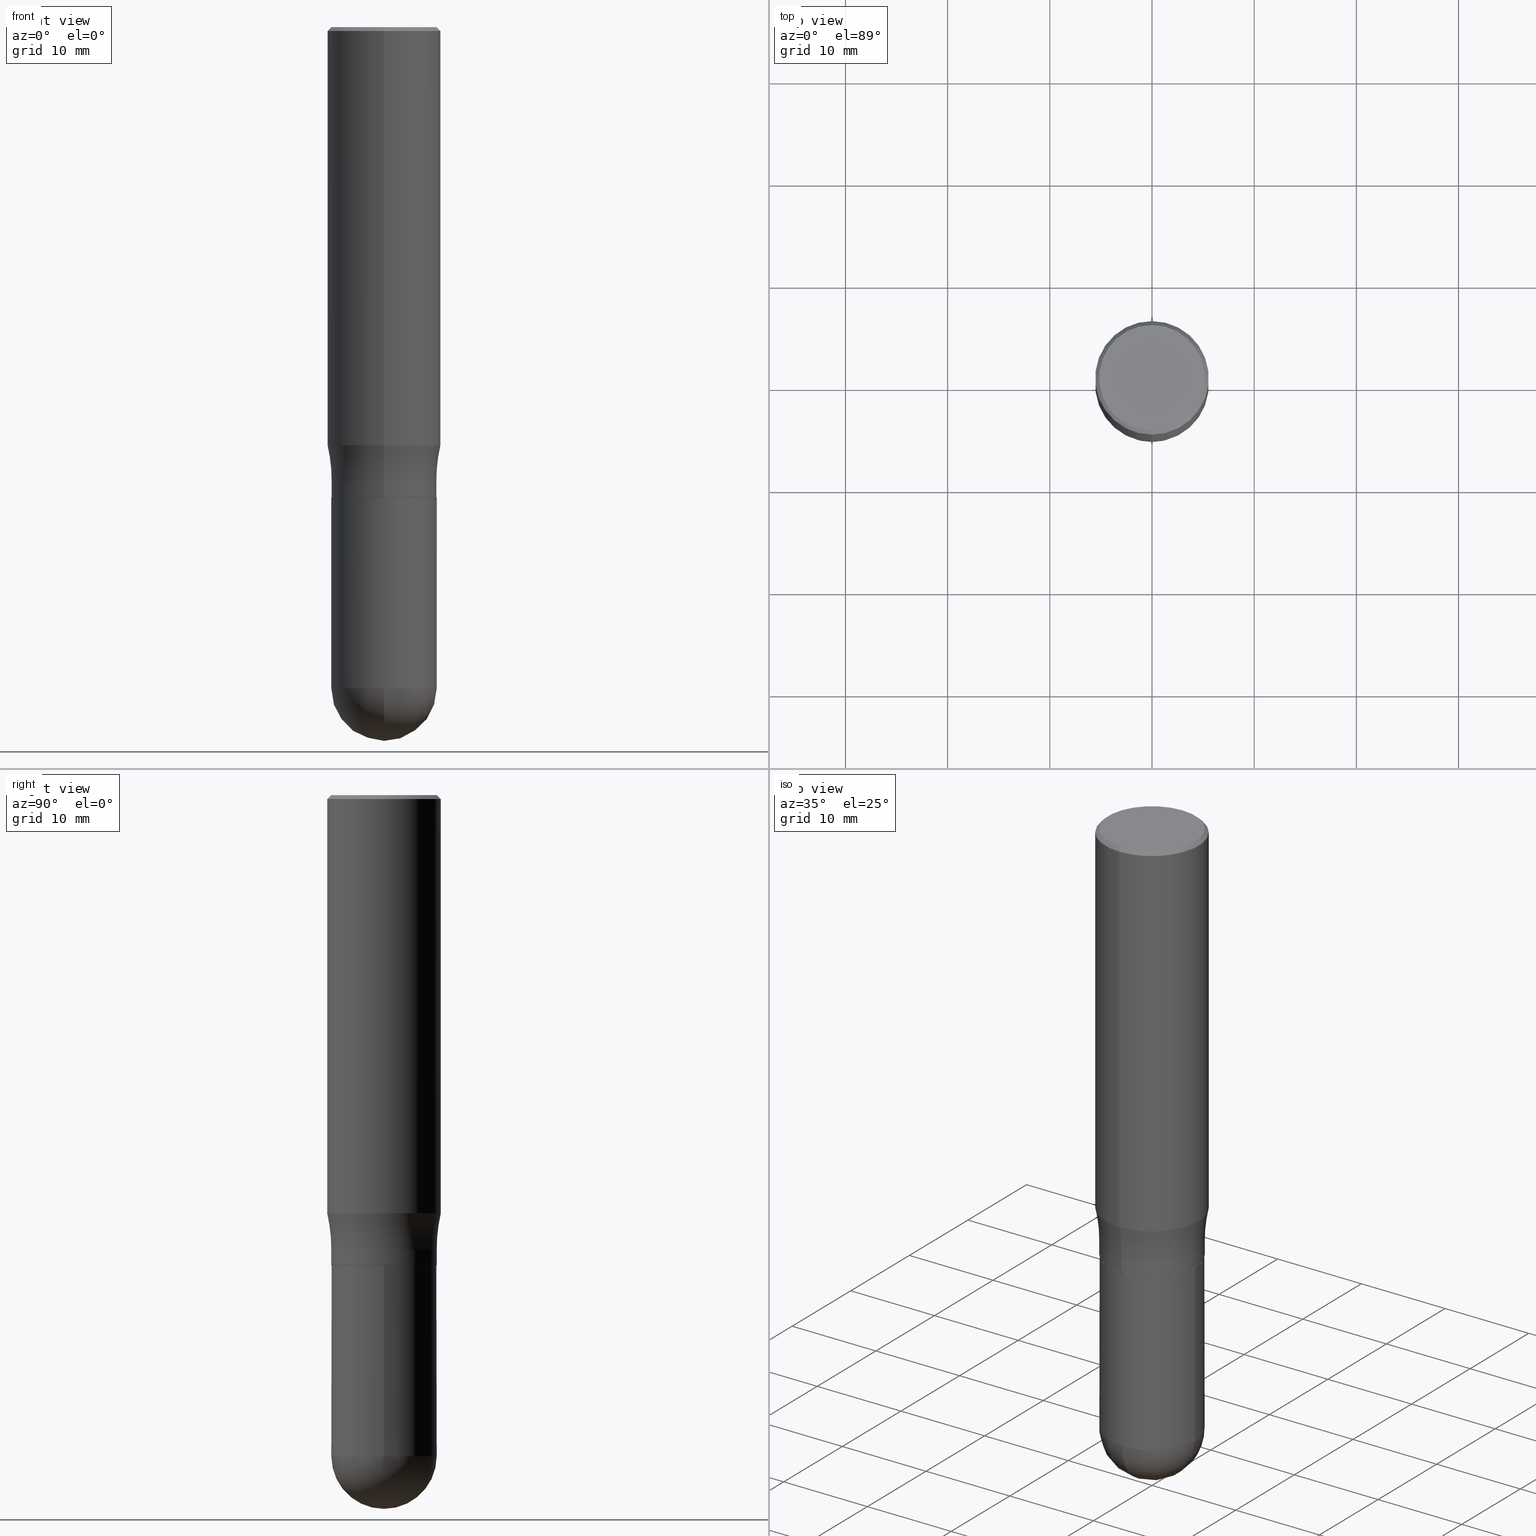
[diagram: canonical four-view strip — front | top / right | iso, engineering-drawing reading convention]
A machine part, canonical four-view strip (front | top / right | iso — engineering-drawing reading convention). The complete STEP part file that produces these views, byte-faithful:
ISO-10303-21;
HEADER;
FILE_DESCRIPTION (( 'STEP AP203' ),
    '1' );
FILE_NAME ('36540.STEP',
    '2024-03-01T12:58:54',
    ( '' ),
    ( '' ),
    'SwSTEP 2.0',
    'SolidWorks 2023',
    '' );
FILE_SCHEMA (( 'CONFIG_CONTROL_DESIGN' ));
ENDSEC;

DATA;
#1 = ORIENTED_EDGE ( 'NONE', *, *, #494, .T. ) ;
#2 = DIRECTION ( 'NONE',  ( -6.982962677686266711E-15, -1.000000000000000000, 3.492555104760498862E-15 ) ) ;
#3 = AXIS2_PLACEMENT_3D ( 'NONE', #290, #445, #2 ) ;
#4 = VERTEX_POINT ( 'NONE', #295 ) ;
#5 = CARTESIAN_POINT ( 'NONE',  ( 0.2031000000000000583, -7.744803905821861355E-15, -1.812000000000000055 ) ) ;
#6 = VERTEX_POINT ( 'NONE', #283 ) ;
#7 = APPLICATION_PROTOCOL_DEFINITION ( 'international standard', 'config_control_design', 1994, #176 ) ;
#8 = DIRECTION ( 'NONE',  ( -2.444718999452591209E-29, 3.492555104760499256E-15, 1.000000000000000000 ) ) ;
#9 = ORIENTED_EDGE ( 'NONE', *, *, #355, .F. ) ;
#10 = PERSON_AND_ORGANIZATION ( #73, #449 ) ;
#11 = CARTESIAN_POINT ( 'NONE',  ( 0.000000000000000000, 0.000000000000000000, 0.000000000000000000 ) ) ;
#12 = DIRECTION ( 'NONE',  ( -6.982962677686265133E-15, -1.000000000000000000, 3.492862791899308071E-15 ) ) ;
#13 = AXIS2_PLACEMENT_3D ( 'NONE', #95, #20, #57 ) ;
#14 = DIRECTION ( 'NONE',  ( -2.444718999452591209E-29, 3.492555104760499256E-15, 1.000000000000000000 ) ) ;
#15 = DIRECTION ( 'NONE',  ( 1.000000000000000000, -6.982962677686265922E-15, 4.876176775795935232E-29 ) ) ;
#16 = CARTESIAN_POINT ( 'NONE',  ( 6.228364502472924746E-29, -8.892453821899607499E-15, -2.546899999999999942 ) ) ;
#17 = EDGE_CURVE ( 'NONE', #349, #6, #387, .T. ) ;
#18 = VECTOR ( 'NONE', #131, 39.37007874015748143 ) ;
#19 = SECURITY_CLASSIFICATION ( '', '', #48 ) ;
#20 = DIRECTION ( 'NONE',  ( -2.445468806185136597E-29, 3.491481338843145583E-15, 1.000000000000000000 ) ) ;
#21 = AXIS2_PLACEMENT_3D ( 'NONE', #362, #83, #364 ) ;
#22 = DIRECTION ( 'NONE',  ( -2.444718999452591209E-29, 3.492555104760499256E-15, 1.000000000000000000 ) ) ;
#23 = ORIENTED_EDGE ( 'NONE', *, *, #174, .F. ) ;
#24 = APPROVAL ( #463, 'UNSPECIFIED' ) ;
#25 = VERTEX_POINT ( 'NONE', #168 ) ;
#26 =( LENGTH_UNIT ( ) NAMED_UNIT ( * ) SI_UNIT ( $, .METRE. ) );
#27 = DIRECTION ( 'NONE',  ( -2.444718999452591209E-29, 3.492555104760499256E-15, 1.000000000000000000 ) ) ;
#28 = ORIENTED_EDGE ( 'NONE', *, *, #91, .T. ) ;
#29 = CARTESIAN_POINT ( 'NONE',  ( 4.429830827008095492E-29, -6.328509849826025393E-15, -1.812000000000000277 ) ) ;
#30 = DIRECTION ( 'NONE',  ( -6.982962677686266711E-15, -1.000000000000000000, 4.045184590815788627E-15 ) ) ;
#31 = APPLICATION_PROTOCOL_DEFINITION ( 'international standard', 'config_control_design', 1994, #411 ) ;
#32 = AXIS2_PLACEMENT_3D ( 'NONE', #56, #374, #377 ) ;
#33 = DIRECTION ( 'NONE',  ( -2.444718999452591209E-29, 3.492555104760499256E-15, 1.000000000000000000 ) ) ;
#34 = VERTEX_POINT ( 'NONE', #338 ) ;
#35 = EDGE_CURVE ( 'NONE', #187, #408, #378, .T. ) ;
#36 = CLOSED_SHELL ( 'NONE', ( #221, #42, #398, #218, #304, #343, #94, #268, #262, #454, #277, #80 ) ) ;
#37 = ORIENTED_EDGE ( 'NONE', *, *, #174, .T. ) ;
#38 = DIRECTION ( 'NONE',  ( 0.000000000000000000, 0.000000000000000000, 1.000000000000000000 ) ) ;
#39 = CARTESIAN_POINT ( 'NONE',  ( -0.2031000000000000583, -6.166396707612929754E-15, -1.812000000000000055 ) ) ;
#40 = CYLINDRICAL_SURFACE ( 'NONE', #21, 0.2187499999999999445 ) ;
#41 = CYLINDRICAL_SURFACE ( 'NONE', #455, 0.2031000000000002248 ) ;
#42 = ADVANCED_FACE ( 'NONE', ( #332 ), #274, .T. ) ;
#43 = AXIS2_PLACEMENT_3D ( 'NONE', #135, #98, #260 ) ;
#44 = ORIENTED_EDGE ( 'NONE', *, *, #361, .T. ) ;
#45 = VERTEX_POINT ( 'NONE', #129 ) ;
#46 = AXIS2_PLACEMENT_3D ( 'NONE', #484, #251, #373 ) ;
#47 = CARTESIAN_POINT ( 'NONE',  ( 6.232375232369175849E-29, -8.886710228411606040E-15, -2.546899999999999942 ) ) ;
#48 = SECURITY_CLASSIFICATION_LEVEL ( 'unclassified' ) ;
#49 = DIRECTION ( 'NONE',  ( -2.445468806185136597E-29, 3.491481338843145583E-15, 1.000000000000000000 ) ) ;
#50 = VERTEX_POINT ( 'NONE', #93 ) ;
#51 = ADVANCED_FACE ( 'NONE', ( #288 ), #415, .T. ) ;
#52 = DIRECTION ( 'NONE',  ( -6.982962677686266711E-15, -1.000000000000000000, 3.492555104760498862E-15 ) ) ;
#53 = DIRECTION ( 'NONE',  ( -2.444718999452591209E-29, 3.492555104760499256E-15, 1.000000000000000000 ) ) ;
#54 = CONICAL_SURFACE ( 'NONE', #154, 0.2026000000000000578, 0.7853981633974824739 ) ;
#55 = DIRECTION ( 'NONE',  ( -2.444718999452591209E-29, 3.492555104760499256E-15, 1.000000000000000000 ) ) ;
#56 = CARTESIAN_POINT ( 'NONE',  ( 3.938472406756047000E-29, -5.626549273047013922E-15, -1.611012311696325527 ) ) ;
#57 = DIRECTION ( 'NONE',  ( 1.000000000000000000, -6.982962677686262766E-15, 0.000000000000000000 ) ) ;
#58 = CIRCLE ( 'NONE', #347, 0.6250000000000000000 ) ;
#59 = APPROVAL_ROLE ( '' ) ;
#60 = CC_DESIGN_SECURITY_CLASSIFICATION ( #19, ( #184 ) ) ;
#61 = DIRECTION ( 'NONE',  ( 2.444718999452590928E-29, -3.492555104760499256E-15, -1.000000000000000000 ) ) ;
#62 = ORIENTED_EDGE ( 'NONE', *, *, #317, .F. ) ;
#63 = APPROVAL_DATE_TIME ( #379, #24 ) ;
#64 = VERTEX_POINT ( 'NONE', #172 ) ;
#65 = CARTESIAN_POINT ( 'NONE',  ( -1.418239719838081959E-15, -0.2031000000000002248, 7.093379417768580917E-16 ) ) ;
#66 = ORIENTED_EDGE ( 'NONE', *, *, #128, .F. ) ;
#67 = LINE ( 'NONE', #232, #234 ) ;
#68 = ORIENTED_EDGE ( 'NONE', *, *, #459, .T. ) ;
#69 = EDGE_CURVE ( 'NONE', #34, #6, #439, .T. ) ;
#70 = ORIENTED_EDGE ( 'NONE', *, *, #371, .T. ) ;
#71 = APPROVAL_ROLE ( '' ) ;
#72 = CIRCLE ( 'NONE', #297, 0.2031000000000000583 ) ;
#73 = PERSON ( 'UNSPECIFIED', 'UNSPECIFIED', 'UNSPECIFIED', ('UNSPECIFIED'), ('UNSPECIFIED'), ('UNSPECIFIED') ) ;
#74 = LINE ( 'NONE', #238, #96 ) ;
#75 = LOCAL_TIME ( 7, 58, 54.00000000000000000, #222 ) ;
#76 = ORIENTED_EDGE ( 'NONE', *, *, #312, .F. ) ;
#77 = CARTESIAN_POINT ( 'NONE',  ( 4.429830827008095492E-29, -6.328509849826025393E-15, -1.812000000000000277 ) ) ;
#78 = DESIGN_CONTEXT ( 'detailed design', #176, 'design' ) ;
#79 = ORIENTED_EDGE ( 'NONE', *, *, #144, .F. ) ;
#80 = ADVANCED_FACE ( 'NONE', ( #203 ), #40, .T. ) ;
#81 = DATE_AND_TIME ( #441, #219 ) ;
#82 = CARTESIAN_POINT ( 'NONE',  ( 4.279570410823991286E-29, -6.110092342975507826E-15, -1.750000000000001110 ) ) ;
#83 = DIRECTION ( 'NONE',  ( -2.444718999452591209E-29, 3.492555104760499256E-15, 1.000000000000000000 ) ) ;
#84 = VERTEX_POINT ( 'NONE', #159 ) ;
#85 = COORDINATED_UNIVERSAL_TIME_OFFSET ( 5, 0, .BEHIND. ) ;
#86 = CARTESIAN_POINT ( 'NONE',  ( -5.782591393391955660E-15, -0.8281000000000063865, -1.749999999999998002 ) ) ;
#87 = ORIENTED_EDGE ( 'NONE', *, *, #97, .T. ) ;
#88 = ORIENTED_EDGE ( 'NONE', *, *, #312, .T. ) ;
#89 = PERSON_AND_ORGANIZATION ( #73, #449 ) ;
#90 = FACE_OUTER_BOUND ( 'NONE', #468, .T. ) ;
#91 = EDGE_CURVE ( 'NONE', #50, #508, #469, .T. ) ;
#92 = DIRECTION ( 'NONE',  ( -6.982962677686265133E-15, -1.000000000000000000, 3.492555104760498862E-15 ) ) ;
#93 = CARTESIAN_POINT ( 'NONE',  ( -0.2031000000000000583, -6.166396707612929754E-15, -2.546899999999999942 ) ) ;
#94 = ADVANCED_FACE ( 'NONE', ( #432 ), #116, .T. ) ;
#95 = CARTESIAN_POINT ( 'NONE',  ( 6.228364502472924746E-29, -8.892453821899607499E-15, -2.546899999999999942 ) ) ;
#96 = VECTOR ( 'NONE', #186, 39.37007874015748143 ) ;
#97 = EDGE_CURVE ( 'NONE', #350, #349, #67, .T. ) ;
#98 = DIRECTION ( 'NONE',  ( -2.444718999452591209E-29, 3.492555104760499256E-15, 1.000000000000000000 ) ) ;
#99 = FACE_OUTER_BOUND ( 'NONE', #273, .T. ) ;
#100 = AXIS2_PLACEMENT_3D ( 'NONE', #346, #500, #472 ) ;
#101 = CC_DESIGN_APPROVAL ( #24, ( #19 ) ) ;
#102 = LINE ( 'NONE', #209, #167 ) ;
#103 = CARTESIAN_POINT ( 'NONE',  ( 0.000000000000000000, 0.000000000000000000, 0.000000000000000000 ) ) ;
#104 = ORIENTED_EDGE ( 'NONE', *, *, #494, .F. ) ;
#105 = DATE_AND_TIME ( #237, #303 ) ;
#106 = AXIS2_PLACEMENT_3D ( 'NONE', #393, #270, #30 ) ;
#107 = DIRECTION ( 'NONE',  ( -2.444718999452591209E-29, 3.492555104760499256E-15, 1.000000000000000000 ) ) ;
#108 = ORIENTED_EDGE ( 'NONE', *, *, #368, .F. ) ;
#109 = AXIS2_PLACEMENT_3D ( 'NONE', #47, #155, #319 ) ;
#110 = CARTESIAN_POINT ( 'NONE',  ( 0.000000000000000000, 0.000000000000000000, 0.000000000000000000 ) ) ;
#111 = ORIENTED_EDGE ( 'NONE', *, *, #211, .F. ) ;
#112 = EDGE_CURVE ( 'NONE', #408, #349, #193, .T. ) ;
#113 = CARTESIAN_POINT ( 'NONE',  ( 4.428608467508369173E-29, -6.326763572273644281E-15, -1.811500000000000110 ) ) ;
#114 = ORIENTED_EDGE ( 'NONE', *, *, #509, .F. ) ;
#115 = DIRECTION ( 'NONE',  ( -4.937700262164715281E-15, -0.7071067811865691111, 0.7071067811865257013 ) ) ;
#116 = CYLINDRICAL_SURFACE ( 'NONE', #381, 0.2031000000000002248 ) ;
#117 = CARTESIAN_POINT ( 'NONE',  ( 0.000000000000000000, 0.000000000000000000, 0.000000000000000000 ) ) ;
#118 = DIRECTION ( 'NONE',  ( -2.444718999452591209E-29, 3.492555104760499256E-15, 1.000000000000000000 ) ) ;
#119 = EDGE_CURVE ( 'NONE', #84, #4, #181, .T. ) ;
#120 = ORIENTED_EDGE ( 'NONE', *, *, #256, .T. ) ;
#121 = DIRECTION ( 'NONE',  ( -1.000000000000000000, 7.105427357601001070E-15, -4.926315508542082329E-29 ) ) ;
#122 = PERSON_AND_ORGANIZATION ( #73, #449 ) ;
#123 = DIRECTION ( 'NONE',  ( -2.444718999452590928E-29, 3.492555104760499256E-15, 1.000000000000000000 ) ) ;
#124 = ORIENTED_EDGE ( 'NONE', *, *, #136, .T. ) ;
#125 = DIRECTION ( 'NONE',  ( 1.000000000000000000, -6.982962677686267499E-15, 0.000000000000000000 ) ) ;
#126 = VECTOR ( 'NONE', #115, 39.37007874015748854 ) ;
#127 = DIRECTION ( 'NONE',  ( -6.982962677686266711E-15, -1.000000000000000000, 4.045184590815788627E-15 ) ) ;
#128 = EDGE_CURVE ( 'NONE', #429, #64, #265, .T. ) ;
#129 = CARTESIAN_POINT ( 'NONE',  ( 6.737734160571993830E-29, -9.583393800085308814E-15, -2.750000000000000444 ) ) ;
#130 = TOROIDAL_SURFACE ( 'NONE', #281, 0.8281000000000002803, 0.6250000000000000000 ) ;
#131 = DIRECTION ( 'NONE',  ( -2.445468806185136877E-29, 3.491481338843145188E-15, 1.000000000000000000 ) ) ;
#132 = AXIS2_PLACEMENT_3D ( 'NONE', #487, #53, #210 ) ;
#133 = ORIENTED_EDGE ( 'NONE', *, *, #368, .T. ) ;
#134 = DIRECTION ( 'NONE',  ( -6.982962677686265133E-15, -1.000000000000000000, 3.492555104760498862E-15 ) ) ;
#135 = CARTESIAN_POINT ( 'NONE',  ( 4.428608467508369173E-29, -6.326763572273644281E-15, -1.811500000000000110 ) ) ;
#136 = EDGE_CURVE ( 'NONE', #504, #64, #496, .T. ) ;
#137 = AXIS2_PLACEMENT_3D ( 'NONE', #29, #231, #386 ) ;
#138 = AXIS2_PLACEMENT_3D ( 'NONE', #110, #38, #157 ) ;
#139 = FACE_OUTER_BOUND ( 'NONE', #156, .T. ) ;
#140 = CC_DESIGN_PERSON_AND_ORGANIZATION_ASSIGNMENT ( #252, #409, ( #184 ) ) ;
#141 = EDGE_LOOP ( 'NONE', ( #320, #28, #382, #44, #108 ) ) ;
#142 = ORIENTED_EDGE ( 'NONE', *, *, #164, .F. ) ;
#143 = ORIENTED_EDGE ( 'NONE', *, *, #423, .T. ) ;
#144 = EDGE_CURVE ( 'NONE', #34, #350, #376, .T. ) ;
#145 = CONICAL_SURFACE ( 'NONE', #192, 0.2187500000000000000, 0.7853981633974485010 ) ;
#146 = ADVANCED_BREP_SHAPE_REPRESENTATION ( '36540', ( #214, #391, #138 ), #416 ) ;
#147 = DIMENSIONAL_EXPONENTS ( 1.000000000000000000, 0.000000000000000000, 0.000000000000000000, 0.000000000000000000, 0.000000000000000000, 0.000000000000000000, 0.000000000000000000 ) ;
#148 = DIRECTION ( 'NONE',  ( -6.982962677686265133E-15, -1.000000000000000000, 4.035225987687237941E-15 ) ) ;
#149 = ORIENTED_EDGE ( 'NONE', *, *, #91, .F. ) ;
#150 = EDGE_LOOP ( 'NONE', ( #76, #208, #120, #311 ) ) ;
#151 = PERSON_AND_ORGANIZATION_ROLE ( 'creator' ) ;
#152 = CARTESIAN_POINT ( 'NONE',  ( 4.431189476807467280E-29, -6.326564185983779791E-15, -1.812000000000000055 ) ) ;
#153 = ORIENTED_EDGE ( 'NONE', *, *, #317, .T. ) ;
#154 = AXIS2_PLACEMENT_3D ( 'NONE', #77, #249, #127 ) ;
#155 = DIRECTION ( 'NONE',  ( 1.000000000000000000, -6.982962677686265922E-15, 4.883557194083112340E-29 ) ) ;
#156 = EDGE_LOOP ( 'NONE', ( #111, #153, #149, #464 ) ) ;
#157 = DIRECTION ( 'NONE',  ( 1.000000000000000000, 0.000000000000000000, 0.000000000000000000 ) ) ;
#158 = DIRECTION ( 'NONE',  ( -1.000000000000000000, 6.982962677686265922E-15, -4.883557194083112340E-29 ) ) ;
#159 = CARTESIAN_POINT ( 'NONE',  ( 1.441335939489408407E-15, 0.2025999999999937295, -1.812000000000000943 ) ) ;
#160 = EDGE_LOOP ( 'NONE', ( #79, #395, #1, #478 ) ) ;
#161 = APPROVAL_DATE_TIME ( #206, #462 ) ;
#162 = CIRCLE ( 'NONE', #239, 0.2031000000000002526 ) ;
#163 = CARTESIAN_POINT ( 'NONE',  ( 3.667078499179149276E-31, -5.238832657141123027E-17, -0.01500000000000107150 ) ) ;
#164 = EDGE_CURVE ( 'NONE', #429, #25, #162, .T. ) ;
#165 = PERSON_AND_ORGANIZATION_ROLE ( 'classification_officer' ) ;
#166 = DIRECTION ( 'NONE',  ( 7.105427357600999492E-15, 1.000000000000000000, 0.000000000000000000 ) ) ;
#167 = VECTOR ( 'NONE', #14, 39.37007874015748143 ) ;
#168 = CARTESIAN_POINT ( 'NONE',  ( 1.443112296328808265E-15, 0.2030999999999939243, -1.811500000000000776 ) ) ;
#169 = EDGE_LOOP ( 'NONE', ( #230, #88, #124, #434 ) ) ;
#170 = AXIS2_PLACEMENT_3D ( 'NONE', #163, #118, #12 ) ;
#171 = DIRECTION ( 'NONE',  ( -2.444718999452591209E-29, 3.492555104760499256E-15, 1.000000000000000000 ) ) ;
#172 = CARTESIAN_POINT ( 'NONE',  ( -1.418239719838039360E-15, -0.2031000000000063310, -1.750000000000000000 ) ) ;
#173 = DIRECTION ( 'NONE',  ( -2.445468806185136597E-29, 3.491481338843145583E-15, 1.000000000000000000 ) ) ;
#174 = EDGE_CURVE ( 'NONE', #187, #6, #388, .T. ) ;
#175 = PERSON_AND_ORGANIZATION ( #73, #449 ) ;
#176 = APPLICATION_CONTEXT ( 'configuration controlled 3d designs of mechanical parts and assemblies' ) ;
#177 = ORIENTED_EDGE ( 'NONE', *, *, #136, .F. ) ;
#178 = CIRCLE ( 'NONE', #225, 0.2031000000000002248 ) ;
#179 = CARTESIAN_POINT ( 'NONE',  ( 4.278258249042036437E-29, -6.111971433330876361E-15, -1.750000000000000666 ) ) ;
#180 = CARTESIAN_POINT ( 'NONE',  ( 6.228364502472924746E-29, -8.892453821899607499E-15, -2.546899999999999942 ) ) ;
#181 = CIRCLE ( 'NONE', #106, 0.2026000000000000578 ) ;
#182 = CC_DESIGN_PERSON_AND_ORGANIZATION_ASSIGNMENT ( #245, #399, ( #280 ) ) ;
#183 = ORIENTED_EDGE ( 'NONE', *, *, #144, .T. ) ;
#184 = PRODUCT_DEFINITION_FORMATION_WITH_SPECIFIED_SOURCE ( 'ANY', '', #352, .NOT_KNOWN. ) ;
#185 = EDGE_LOOP ( 'NONE', ( #114, #397 ) ) ;
#186 = DIRECTION ( 'NONE',  ( -2.445468806185136877E-29, 3.491481338843145188E-15, 1.000000000000000000 ) ) ;
#187 = VERTEX_POINT ( 'NONE', #435 ) ;
#188 =( NAMED_UNIT ( * ) SI_UNIT ( $, .STERADIAN. ) SOLID_ANGLE_UNIT ( ) );
#189 = CARTESIAN_POINT ( 'NONE',  ( 2.620031829638276978E-44, -3.743009132455350096E-30, -1.071710830661904651E-15 ) ) ;
#190 = PRODUCT_DEFINITION_SHAPE ( 'NONE', 'NONE',  #280 ) ;
#191 = EDGE_LOOP ( 'NONE', ( #443, #70, #512, #177 ) ) ;
#192 = AXIS2_PLACEMENT_3D ( 'NONE', #294, #452, #514 ) ;
#193 = LINE ( 'NONE', #356, #340 ) ;
#194 = PERSON_AND_ORGANIZATION ( #73, #449 ) ;
#195 = CARTESIAN_POINT ( 'NONE',  ( 6.232375232369175849E-29, -8.886710228411606040E-15, -2.546899999999999942 ) ) ;
#196 = ORIENTED_EDGE ( 'NONE', *, *, #298, .F. ) ;
#197 = MECHANICAL_CONTEXT ( 'NONE', #411, 'mechanical' ) ;
#198 = FACE_OUTER_BOUND ( 'NONE', #481, .T. ) ;
#199 = CARTESIAN_POINT ( 'NONE',  ( 0.000000000000000000, 0.000000000000000000, 0.000000000000000000 ) ) ;
#200 = CIRCLE ( 'NONE', #466, 0.2031000000000000583 ) ;
#201 = FACE_OUTER_BOUND ( 'NONE', #502, .T. ) ;
#202 = EDGE_CURVE ( 'NONE', #50, #226, #74, .T. ) ;
#203 = FACE_OUTER_BOUND ( 'NONE', #318, .T. ) ;
#204 = ORIENTED_EDGE ( 'NONE', *, *, #17, .F. ) ;
#205 = DIRECTION ( 'NONE',  ( -6.982962677686265133E-15, -1.000000000000000000, 0.000000000000000000 ) ) ;
#206 = DATE_AND_TIME ( #479, #436 ) ;
#207 = CARTESIAN_POINT ( 'NONE',  ( 1.527523085743871040E-15, 0.2187499999999999167, -0.01500000000000183478 ) ) ;
#208 = ORIENTED_EDGE ( 'NONE', *, *, #35, .F. ) ;
#209 = CARTESIAN_POINT ( 'NONE',  ( 1.443112296328764878E-15, 0.2031000000000002248, -7.093379417768580917E-16 ) ) ;
#210 = DIRECTION ( 'NONE',  ( -6.982962677686265922E-15, -1.000000000000000000, 3.746534391310990346E-15 ) ) ;
#211 = EDGE_CURVE ( 'NONE', #45, #499, #384, .T. ) ;
#212 = DIRECTION ( 'NONE',  ( -6.982962677686265133E-15, -1.000000000000000000, 4.035225987687237941E-15 ) ) ;
#213 = FACE_OUTER_BOUND ( 'NONE', #141, .T. ) ;
#214 = MANIFOLD_SOLID_BREP ( 'Body-Move/Copy2[1]', #324 ) ;
#215 = DIRECTION ( 'NONE',  ( -2.444718999452591209E-29, 3.492555104760499256E-15, 1.000000000000000000 ) ) ;
#216 = AXIS2_PLACEMENT_3D ( 'NONE', #428, #33, #148 ) ;
#217 = CIRCLE ( 'NONE', #263, 0.2031000000000002248 ) ;
#218 = ADVANCED_FACE ( 'NONE', ( #90 ), #41, .T. ) ;
#219 = LOCAL_TIME ( 7, 58, 54.00000000000000000, #286 ) ;
#220 = CARTESIAN_POINT ( 'NONE',  ( 0.2031000000000000583, -9.027748723779773632E-15, -2.546899999999999942 ) ) ;
#221 = ADVANCED_FACE ( 'NONE', ( #201 ), #363, .T. ) ;
#222 = COORDINATED_UNIVERSAL_TIME_OFFSET ( 5, 0, .BEHIND. ) ;
#223 = ORIENTED_EDGE ( 'NONE', *, *, #335, .F. ) ;
#224 = LENGTH_MEASURE_WITH_UNIT ( LENGTH_MEASURE( 0.02539999999999999897 ), #26 );
#225 = AXIS2_PLACEMENT_3D ( 'NONE', #195, #121, #331 ) ;
#226 = VERTEX_POINT ( 'NONE', #39 ) ;
#227 = CARTESIAN_POINT ( 'NONE',  ( -1.414748238499193395E-15, -0.2026000000000063583, -1.811999999999999389 ) ) ;
#228 = CC_DESIGN_PERSON_AND_ORGANIZATION_ASSIGNMENT ( #10, #165, ( #19 ) ) ;
#229 = DIRECTION ( 'NONE',  ( -2.444718999452591209E-29, 3.492555104760499256E-15, 1.000000000000000000 ) ) ;
#230 = ORIENTED_EDGE ( 'NONE', *, *, #419, .F. ) ;
#231 = DIRECTION ( 'NONE',  ( -2.444718999452591209E-29, 3.492555104760499256E-15, 1.000000000000000000 ) ) ;
#232 = CARTESIAN_POINT ( 'NONE',  ( 1.527523085743871040E-15, 0.2187499999999999167, -0.01500000000000183478 ) ) ;
#233 = ORIENTED_EDGE ( 'NONE', *, *, #211, .T. ) ;
#234 = VECTOR ( 'NONE', #313, 39.37007874015748143 ) ;
#235 = CARTESIAN_POINT ( 'NONE',  ( -1.527523085743870251E-15, -0.2187499999999999445, 7.639964291663590521E-16 ) ) ;
#236 = ORIENTED_EDGE ( 'NONE', *, *, #298, .T. ) ;
#237 = CALENDAR_DATE ( 2024, 1, 3 ) ;
#238 = CARTESIAN_POINT ( 'NONE',  ( -0.2031000000000000583, 1.443112296328763891E-15, -9.990357168307717005E-30 ) ) ;
#239 = AXIS2_PLACEMENT_3D ( 'NONE', #113, #279, #503 ) ;
#240 = VECTOR ( 'NONE', #401, 39.37007874015748143 ) ;
#241 = ADVANCED_FACE ( 'NONE', ( #438 ), #254, .F. ) ;
#242 = CALENDAR_DATE ( 2024, 1, 3 ) ;
#243 = DIRECTION ( 'NONE',  ( 2.438088387897960049E-29, -3.491481338843145188E-15, -1.000000000000000000 ) ) ;
#244 = CARTESIAN_POINT ( 'NONE',  ( -1.500733937012521740E-15, -0.2187500000000000555, -0.01500000000000030823 ) ) ;
#245 = PERSON_AND_ORGANIZATION ( #73, #449 ) ;
#246 = DIRECTION ( 'NONE',  ( -2.444718999452591209E-29, 3.492555104760499256E-15, 1.000000000000000000 ) ) ;
#247 = CIRCLE ( 'NONE', #13, 0.2031000000000000583 ) ;
#248 = CIRCLE ( 'NONE', #32, 0.2187499999999999445 ) ;
#249 = DIRECTION ( 'NONE',  ( -2.444718999452591209E-29, 3.492555104760499256E-15, 1.000000000000000000 ) ) ;
#250 = CC_DESIGN_DATE_AND_TIME_ASSIGNMENT ( #105, #492, ( #19 ) ) ;
#251 = DIRECTION ( 'NONE',  ( 2.444718999452591209E-29, -3.492555104760499256E-15, -1.000000000000000000 ) ) ;
#252 = PERSON_AND_ORGANIZATION ( #73, #449 ) ;
#253 = ORIENTED_EDGE ( 'NONE', *, *, #361, .F. ) ;
#254 = PLANE ( 'NONE',  #342 ) ;
#255 = DIRECTION ( 'NONE',  ( -2.445468806185136597E-29, 3.491481338843145583E-15, 1.000000000000000000 ) ) ;
#256 = EDGE_CURVE ( 'NONE', #187, #64, #404, .T. ) ;
#257 = FACE_OUTER_BOUND ( 'NONE', #307, .T. ) ;
#258 = AXIS2_PLACEMENT_3D ( 'NONE', #474, #123, #323 ) ;
#259 = CARTESIAN_POINT ( 'NONE',  ( 4.429830827008095492E-29, -6.328509849826025393E-15, -1.812000000000000277 ) ) ;
#260 = DIRECTION ( 'NONE',  ( -6.982962677686265922E-15, -1.000000000000000000, 4.035225987687237941E-15 ) ) ;
#261 = PLANE ( 'NONE',  #505 ) ;
#262 = ADVANCED_FACE ( 'NONE', ( #369 ), #402, .F. ) ;
#263 = AXIS2_PLACEMENT_3D ( 'NONE', #179, #171, #212 ) ;
#264 = ORIENTED_EDGE ( 'NONE', *, *, #419, .T. ) ;
#265 = LINE ( 'NONE', #65, #446 ) ;
#266 = AXIS2_PLACEMENT_3D ( 'NONE', #189, #506, #470 ) ;
#267 = ORIENTED_EDGE ( 'NONE', *, *, #459, .F. ) ;
#268 = ADVANCED_FACE ( 'NONE', ( #366 ), #54, .T. ) ;
#269 =( CONVERSION_BASED_UNIT ( 'INCH', #224 ) LENGTH_UNIT ( ) NAMED_UNIT ( #147 ) );
#270 = DIRECTION ( 'NONE',  ( -2.444718999452591209E-29, 3.492555104760499256E-15, 1.000000000000000000 ) ) ;
#271 = AXIS2_PLACEMENT_3D ( 'NONE', #11, #246, #405 ) ;
#272 = VECTOR ( 'NONE', #27, 39.37007874015748143 ) ;
#273 = EDGE_LOOP ( 'NONE', ( #370, #183 ) ) ;
#274 = CONICAL_SURFACE ( 'NONE', #46, 0.2187500000000000000, 0.7853981633974485010 ) ;
#275 = ORIENTED_EDGE ( 'NONE', *, *, #112, .F. ) ;
#276 = DIRECTION ( 'NONE',  ( -2.444718999452591209E-29, 3.492555104760499256E-15, 1.000000000000000000 ) ) ;
#277 = ADVANCED_FACE ( 'NONE', ( #198 ), #145, .T. ) ;
#278 = VERTEX_POINT ( 'NONE', #5 ) ;
#279 = DIRECTION ( 'NONE',  ( -2.444718999452591209E-29, 3.492555104760499256E-15, 1.000000000000000000 ) ) ;
#280 = PRODUCT_DEFINITION ( 'UNKNOWN', '', #184, #78 ) ;
#281 = AXIS2_PLACEMENT_3D ( 'NONE', #82, #337, #52 ) ;
#282 = SPHERICAL_SURFACE ( 'NONE', #394, 0.2031000000000002248 ) ;
#283 = CARTESIAN_POINT ( 'NONE',  ( -1.500733937012521740E-15, -0.2187500000000000555, -0.01500000000000030823 ) ) ;
#284 = UNCERTAINTY_MEASURE_WITH_UNIT (LENGTH_MEASURE( 1.000000000000000082E-05 ), #269, 'distance_accuracy_value', 'NONE');
#285 = ORIENTED_EDGE ( 'NONE', *, *, #375, .F. ) ;
#286 = COORDINATED_UNIVERSAL_TIME_OFFSET ( 5, 0, .BEHIND. ) ;
#287 = CARTESIAN_POINT ( 'NONE',  ( 6.232375232369175849E-29, -8.886710228411606040E-15, -2.546899999999999942 ) ) ;
#288 = FACE_OUTER_BOUND ( 'NONE', #330, .T. ) ;
#289 = ORIENTED_EDGE ( 'NONE', *, *, #69, .F. ) ;
#290 = CARTESIAN_POINT ( 'NONE',  ( 4.279570410823991286E-29, -6.110092342975507826E-15, -1.750000000000001110 ) ) ;
#291 = AXIS2_PLACEMENT_3D ( 'NONE', #420, #301, #491 ) ;
#292 = DATE_AND_TIME ( #242, #498 ) ;
#293 = APPROVAL_PERSON_ORGANIZATION ( #175, #24, #59 ) ;
#294 = CARTESIAN_POINT ( 'NONE',  ( 3.667078499179149276E-31, -5.238832657141123027E-17, -0.01500000000000107150 ) ) ;
#295 = CARTESIAN_POINT ( 'NONE',  ( -1.414748238499193395E-15, -0.2026000000000063583, -1.811999999999999389 ) ) ;
#296 = CARTESIAN_POINT ( 'NONE',  ( -1.418239719838037782E-15, -0.2031000000000065808, -1.811499999999999222 ) ) ;
#297 = AXIS2_PLACEMENT_3D ( 'NONE', #152, #49, #125 ) ;
#298 = EDGE_CURVE ( 'NONE', #84, #25, #360, .T. ) ;
#299 = CARTESIAN_POINT ( 'NONE',  ( 2.620031829638276978E-44, -3.743009132455350096E-30, -1.071710830661904651E-15 ) ) ;
#300 = CALENDAR_DATE ( 2024, 1, 3 ) ;
#301 = DIRECTION ( 'NONE',  ( -2.445468806185136597E-29, 3.491481338843145583E-15, 1.000000000000000000 ) ) ;
#302 = CIRCLE ( 'NONE', #137, 0.2026000000000000578 ) ;
#303 = LOCAL_TIME ( 7, 58, 54.00000000000000000, #334 ) ;
#304 = ADVANCED_FACE ( 'NONE', ( #480 ), #475, .F. ) ;
#305 = EDGE_LOOP ( 'NONE', ( #315, #133 ) ) ;
#306 = SHAPE_DEFINITION_REPRESENTATION ( #190, #146 ) ;
#307 = EDGE_LOOP ( 'NONE', ( #326, #236, #142, #267 ) ) ;
#308 =( NAMED_UNIT ( * ) PLANE_ANGLE_UNIT ( ) SI_UNIT ( $, .RADIAN. ) );
#309 = DIRECTION ( 'NONE',  ( -6.982962677686265133E-15, -1.000000000000000000, 3.492555104760498862E-15 ) ) ;
#310 = CIRCLE ( 'NONE', #447, 0.2031000000000000583 ) ;
#311 = ORIENTED_EDGE ( 'NONE', *, *, #412, .T. ) ;
#312 = EDGE_CURVE ( 'NONE', #408, #504, #58, .T. ) ;
#313 = DIRECTION ( 'NONE',  ( 4.937700262164548831E-15, 0.7071067811865452413, -0.7071067811865497932 ) ) ;
#314 = AXIS2_PLACEMENT_3D ( 'NONE', #329, #433, #511 ) ;
#315 = ORIENTED_EDGE ( 'NONE', *, *, #335, .T. ) ;
#316 = CARTESIAN_POINT ( 'NONE',  ( 3.667078499179149276E-31, -5.238832657141123027E-17, -0.01500000000000107150 ) ) ;
#317 = EDGE_CURVE ( 'NONE', #45, #508, #178, .T. ) ;
#318 = EDGE_LOOP ( 'NONE', ( #275, #264, #37, #204 ) ) ;
#319 = DIRECTION ( 'NONE',  ( 6.982962677686265133E-15, 1.000000000000000000, 0.000000000000000000 ) ) ;
#320 = ORIENTED_EDGE ( 'NONE', *, *, #202, .F. ) ;
#321 = VECTOR ( 'NONE', #328, 39.37007874015748854 ) ;
#322 = DATE_TIME_ROLE ( 'creation_date' ) ;
#323 = DIRECTION ( 'NONE',  ( -6.982962677686265922E-15, -1.000000000000000000, 3.492555104760499256E-15 ) ) ;
#324 = CLOSED_SHELL ( 'NONE', ( #51, #501, #241, #325, #440 ) ) ;
#325 = ADVANCED_FACE ( 'NONE', ( #358 ), #282, .T. ) ;
#326 = ORIENTED_EDGE ( 'NONE', *, *, #509, .T. ) ;
#327 = COORDINATED_UNIVERSAL_TIME_OFFSET ( 5, 0, .BEHIND. ) ;
#328 = DIRECTION ( 'NONE',  ( 5.024295867788231995E-15, 0.7071067811865739960, 0.7071067811865208164 ) ) ;
#329 = CARTESIAN_POINT ( 'NONE',  ( 6.228364502472924746E-29, -8.892453821899607499E-15, -2.546899999999999942 ) ) ;
#330 = EDGE_LOOP ( 'NONE', ( #143, #385, #223, #253, #465 ) ) ;
#331 = DIRECTION ( 'NONE',  ( -7.105427357601001070E-15, -1.000000000000000000, 0.000000000000000000 ) ) ;
#332 = FACE_OUTER_BOUND ( 'NONE', #160, .T. ) ;
#333 = AXIS2_PLACEMENT_3D ( 'NONE', #316, #22, #424 ) ;
#334 = COORDINATED_UNIVERSAL_TIME_OFFSET ( 5, 0, .BEHIND. ) ;
#335 = EDGE_CURVE ( 'NONE', #278, #226, #72, .T. ) ;
#336 = APPROVAL_PERSON_ORGANIZATION ( #122, #339, #357 ) ;
#337 = DIRECTION ( 'NONE',  ( -2.444718999452591209E-29, 3.492555104760499256E-15, 1.000000000000000000 ) ) ;
#338 = CARTESIAN_POINT ( 'NONE',  ( -1.449280202029235538E-15, -0.2037499999999999867, -3.601027280669530270E-16 ) ) ;
#339 = APPROVAL ( #444, 'UNSPECIFIED' ) ;
#340 = VECTOR ( 'NONE', #276, 39.37007874015748143 ) ;
#341 = CARTESIAN_POINT ( 'NONE',  ( 1.475150865661223764E-15, 0.2037499999999999867, -1.783318933256856177E-15 ) ) ;
#342 = AXIS2_PLACEMENT_3D ( 'NONE', #400, #243, #486 ) ;
#343 = ADVANCED_FACE ( 'NONE', ( #451 ), #130, .F. ) ;
#344 = DIRECTION ( 'NONE',  ( 1.000000000000000000, -6.982962677686262766E-15, 0.000000000000000000 ) ) ;
#345 = DIRECTION ( 'NONE',  ( 1.000000000000000000, -6.982962677686262766E-15, 0.000000000000000000 ) ) ;
#346 = CARTESIAN_POINT ( 'NONE',  ( 6.232375232369175849E-29, -8.886710228411606040E-15, -2.546899999999999942 ) ) ;
#347 = AXIS2_PLACEMENT_3D ( 'NONE', #477, #414, #166 ) ;
#348 = CC_DESIGN_APPROVAL ( #462, ( #280 ) ) ;
#349 = VERTEX_POINT ( 'NONE', #207 ) ;
#350 = VERTEX_POINT ( 'NONE', #341 ) ;
#351 = DIRECTION ( 'NONE',  ( 6.982962677686265922E-15, 1.000000000000000000, -3.492555104760499256E-15 ) ) ;
#352 = PRODUCT ( '36540', '36540', '', ( #197 ) ) ;
#353 = AXIS2_PLACEMENT_3D ( 'NONE', #299, #55, #134 ) ;
#354 = ORIENTED_EDGE ( 'NONE', *, *, #389, .F. ) ;
#355 = EDGE_CURVE ( 'NONE', #431, #499, #460, .T. ) ;
#356 = CARTESIAN_POINT ( 'NONE',  ( 1.554312234475218565E-15, 0.2187499999999999445, -7.639964291663590521E-16 ) ) ;
#357 = APPROVAL_ROLE ( '' ) ;
#358 = FACE_OUTER_BOUND ( 'NONE', #403, .T. ) ;
#359 = ORIENTED_EDGE ( 'NONE', *, *, #371, .F. ) ;
#360 = LINE ( 'NONE', #410, #321 ) ;
#361 = EDGE_CURVE ( 'NONE', #431, #278, #453, .T. ) ;
#362 = CARTESIAN_POINT ( 'NONE',  ( 0.000000000000000000, 0.000000000000000000, 0.000000000000000000 ) ) ;
#363 = CYLINDRICAL_SURFACE ( 'NONE', #271, 0.2187499999999999445 ) ;
#364 = DIRECTION ( 'NONE',  ( -6.982962677686265922E-15, -1.000000000000000000, 3.492555104760499256E-15 ) ) ;
#365 = PERSON_AND_ORGANIZATION ( #73, #449 ) ;
#366 = FACE_OUTER_BOUND ( 'NONE', #448, .T. ) ;
#367 = ORIENTED_EDGE ( 'NONE', *, *, #412, .F. ) ;
#368 = EDGE_CURVE ( 'NONE', #226, #278, #200, .T. ) ;
#369 = FACE_OUTER_BOUND ( 'NONE', #185, .T. ) ;
#370 = ORIENTED_EDGE ( 'NONE', *, *, #389, .T. ) ;
#371 = EDGE_CURVE ( 'NONE', #25, #429, #372, .T. ) ;
#372 = CIRCLE ( 'NONE', #43, 0.2031000000000002526 ) ;
#373 = DIRECTION ( 'NONE',  ( 6.982962677686265133E-15, 1.000000000000000000, -3.492862791899308071E-15 ) ) ;
#374 = DIRECTION ( 'NONE',  ( -2.444718999452591209E-29, 3.492555104760499256E-15, 1.000000000000000000 ) ) ;
#375 = EDGE_CURVE ( 'NONE', #508, #431, #247, .T. ) ;
#376 = CIRCLE ( 'NONE', #266, 0.2037499999999999867 ) ;
#377 = DIRECTION ( 'NONE',  ( -6.982962677686265922E-15, -1.000000000000000000, 3.746534391310990346E-15 ) ) ;
#378 = CIRCLE ( 'NONE', #132, 0.2187499999999999445 ) ;
#379 = DATE_AND_TIME ( #300, #75 ) ;
#380 = LINE ( 'NONE', #227, #126 ) ;
#381 = AXIS2_PLACEMENT_3D ( 'NONE', #103, #107, #309 ) ;
#382 = ORIENTED_EDGE ( 'NONE', *, *, #375, .T. ) ;
#383 = CARTESIAN_POINT ( 'NONE',  ( 1.498712265402032939E-15, 0.2030999999999941186, -1.750000000000001554 ) ) ;
#384 = CIRCLE ( 'NONE', #109, 0.2031000000000002248 ) ;
#385 = ORIENTED_EDGE ( 'NONE', *, *, #202, .T. ) ;
#386 = DIRECTION ( 'NONE',  ( -6.982962677686266711E-15, -1.000000000000000000, 4.045184590815788627E-15 ) ) ;
#387 = CIRCLE ( 'NONE', #170, 0.2187500000000000000 ) ;
#388 = LINE ( 'NONE', #235, #272 ) ;
#389 = EDGE_CURVE ( 'NONE', #350, #34, #467, .T. ) ;
#390 = ORIENTED_EDGE ( 'NONE', *, *, #35, .T. ) ;
#391 = MANIFOLD_SOLID_BREP ( 'Body-Move/Copy2[2]', #36 ) ;
#392 = SPHERICAL_SURFACE ( 'NONE', #100, 0.2031000000000002248 ) ;
#393 = CARTESIAN_POINT ( 'NONE',  ( 4.429830827008095492E-29, -6.328509849826025393E-15, -1.812000000000000277 ) ) ;
#394 = AXIS2_PLACEMENT_3D ( 'NONE', #287, #483, #442 ) ;
#395 = ORIENTED_EDGE ( 'NONE', *, *, #69, .T. ) ;
#396 = PERSON_AND_ORGANIZATION_ROLE ( 'design_owner' ) ;
#397 = ORIENTED_EDGE ( 'NONE', *, *, #119, .F. ) ;
#398 = ADVANCED_FACE ( 'NONE', ( #257 ), #490, .T. ) ;
#399 = PERSON_AND_ORGANIZATION_ROLE ( 'creator' ) ;
#400 = CARTESIAN_POINT ( 'NONE',  ( 1.418239719838125543E-15, 0.2030999999999937300, -1.812000000000000721 ) ) ;
#401 = DIRECTION ( 'NONE',  ( -4.851104656540965064E-15, -0.7071067811865501263, -0.7071067811865449082 ) ) ;
#402 = PLANE ( 'NONE',  #258 ) ;
#403 = EDGE_LOOP ( 'NONE', ( #62, #233, #9, #285 ) ) ;
#404 = CIRCLE ( 'NONE', #497, 0.6250000000000000000 ) ;
#405 = DIRECTION ( 'NONE',  ( -6.982962677686265922E-15, -1.000000000000000000, 3.492555104760499256E-15 ) ) ;
#406 = EDGE_CURVE ( 'NONE', #25, #504, #102, .T. ) ;
#407 = AXIS2_PLACEMENT_3D ( 'NONE', #199, #255, #15 ) ;
#408 = VERTEX_POINT ( 'NONE', #457 ) ;
#409 = PERSON_AND_ORGANIZATION_ROLE ( 'design_supplier' ) ;
#410 = CARTESIAN_POINT ( 'NONE',  ( 1.439559582650007564E-15, 0.2025999999999937295, -1.812000000000000943 ) ) ;
#411 = APPLICATION_CONTEXT ( 'configuration controlled 3d designs of mechanical parts and assemblies' ) ;
#412 = EDGE_CURVE ( 'NONE', #64, #504, #217, .T. ) ;
#413 = ORIENTED_EDGE ( 'NONE', *, *, #17, .T. ) ;
#414 = DIRECTION ( 'NONE',  ( 1.000000000000000000, -7.105427357601001070E-15, 4.926328658382019374E-29 ) ) ;
#415 = CYLINDRICAL_SURFACE ( 'NONE', #407, 0.2031000000000000583 ) ;
#416 =( GEOMETRIC_REPRESENTATION_CONTEXT ( 3 ) GLOBAL_UNCERTAINTY_ASSIGNED_CONTEXT ( ( #284 ) ) GLOBAL_UNIT_ASSIGNED_CONTEXT ( ( #269, #308, #188 ) ) REPRESENTATION_CONTEXT ( 'NONE', 'WORKASPACE' ) );
#417 = APPROVAL_PERSON_ORGANIZATION ( #194, #462, #71 ) ;
#418 = DIRECTION ( 'NONE',  ( -6.982962677686266711E-15, -1.000000000000000000, 4.045184590815788627E-15 ) ) ;
#419 = EDGE_CURVE ( 'NONE', #408, #187, #248, .T. ) ;
#420 = CARTESIAN_POINT ( 'NONE',  ( 0.000000000000000000, 0.000000000000000000, 0.000000000000000000 ) ) ;
#421 = CIRCLE ( 'NONE', #333, 0.2187500000000000000 ) ;
#422 = CARTESIAN_POINT ( 'NONE',  ( 1.422778645578576487E-15, 0.2037499999999999867, -1.247463517925903950E-15 ) ) ;
#423 = EDGE_CURVE ( 'NONE', #499, #50, #310, .T. ) ;
#424 = DIRECTION ( 'NONE',  ( -6.982962677686265133E-15, -1.000000000000000000, 3.492862791899308071E-15 ) ) ;
#425 = CC_DESIGN_PERSON_AND_ORGANIZATION_ASSIGNMENT ( #365, #396, ( #352 ) ) ;
#426 = ORIENTED_EDGE ( 'NONE', *, *, #164, .T. ) ;
#427 = CARTESIAN_POINT ( 'NONE',  ( -1.443112296328701966E-15, -0.2031000000000090233, -2.546899999999999498 ) ) ;
#428 = CARTESIAN_POINT ( 'NONE',  ( 4.278258249042036437E-29, -6.111971433330876361E-15, -1.750000000000000666 ) ) ;
#429 = VERTEX_POINT ( 'NONE', #296 ) ;
#430 = AXIS2_PLACEMENT_3D ( 'NONE', #180, #489, #345 ) ;
#431 = VERTEX_POINT ( 'NONE', #220 ) ;
#432 = FACE_OUTER_BOUND ( 'NONE', #191, .T. ) ;
#433 = DIRECTION ( 'NONE',  ( -2.445468806185136597E-29, 3.491481338843145583E-15, 1.000000000000000000 ) ) ;
#434 = ORIENTED_EDGE ( 'NONE', *, *, #256, .F. ) ;
#435 = CARTESIAN_POINT ( 'NONE',  ( -1.527523085743830611E-15, -0.2187500000000055511, -1.611012311696324639 ) ) ;
#436 = LOCAL_TIME ( 7, 58, 54.00000000000000000, #327 ) ;
#437 = APPROVAL_STATUS ( 'not_yet_approved' ) ;
#438 = FACE_OUTER_BOUND ( 'NONE', #305, .T. ) ;
#439 = LINE ( 'NONE', #244, #240 ) ;
#440 = ADVANCED_FACE ( 'NONE', ( #213 ), #456, .T. ) ;
#441 = CALENDAR_DATE ( 2024, 1, 3 ) ;
#442 = DIRECTION ( 'NONE',  ( 6.982962677686265133E-15, 1.000000000000000000, -2.690150658458158759E-15 ) ) ;
#443 = ORIENTED_EDGE ( 'NONE', *, *, #406, .F. ) ;
#444 = APPROVAL_STATUS ( 'not_yet_approved' ) ;
#445 = DIRECTION ( 'NONE',  ( -2.444718999452591209E-29, 3.492555104760499256E-15, 1.000000000000000000 ) ) ;
#446 = VECTOR ( 'NONE', #229, 39.37007874015748143 ) ;
#447 = AXIS2_PLACEMENT_3D ( 'NONE', #16, #173, #344 ) ;
#448 = EDGE_LOOP ( 'NONE', ( #196, #473, #68, #359 ) ) ;
#449 = ORGANIZATION ( 'UNSPECIFIED', 'UNSPECIFIED', '' ) ;
#450 = APPROVAL_DATE_TIME ( #292, #339 ) ;
#451 = FACE_OUTER_BOUND ( 'NONE', #150, .T. ) ;
#452 = DIRECTION ( 'NONE',  ( 2.444718999452591209E-29, -3.492555104760499256E-15, -1.000000000000000000 ) ) ;
#453 = LINE ( 'NONE', #493, #18 ) ;
#454 = ADVANCED_FACE ( 'NONE', ( #99 ), #261, .F. ) ;
#455 = AXIS2_PLACEMENT_3D ( 'NONE', #117, #8, #92 ) ;
#456 = CYLINDRICAL_SURFACE ( 'NONE', #291, 0.2031000000000000583 ) ;
#457 = CARTESIAN_POINT ( 'NONE',  ( 1.554312234475258205E-15, 0.2187499999999942824, -1.611012311696326194 ) ) ;
#458 = DIRECTION ( 'NONE',  ( -2.445468806185136597E-29, 3.491481338843145583E-15, 1.000000000000000000 ) ) ;
#459 = EDGE_CURVE ( 'NONE', #4, #429, #380, .T. ) ;
#460 = CIRCLE ( 'NONE', #430, 0.2031000000000000583 ) ;
#461 = CARTESIAN_POINT ( 'NONE',  ( 4.431189476807467280E-29, -6.326564185983779791E-15, -1.812000000000000055 ) ) ;
#462 = APPROVAL ( #437, 'UNSPECIFIED' ) ;
#463 = APPROVAL_STATUS ( 'not_yet_approved' ) ;
#464 = ORIENTED_EDGE ( 'NONE', *, *, #423, .F. ) ;
#465 = ORIENTED_EDGE ( 'NONE', *, *, #355, .T. ) ;
#466 = AXIS2_PLACEMENT_3D ( 'NONE', #461, #458, #495 ) ;
#467 = CIRCLE ( 'NONE', #353, 0.2037499999999999867 ) ;
#468 = EDGE_LOOP ( 'NONE', ( #426, #471, #367, #66 ) ) ;
#469 = CIRCLE ( 'NONE', #314, 0.2031000000000000583 ) ;
#470 = DIRECTION ( 'NONE',  ( -6.982962677686265133E-15, -1.000000000000000000, 3.492555104760498862E-15 ) ) ;
#471 = ORIENTED_EDGE ( 'NONE', *, *, #406, .T. ) ;
#472 = DIRECTION ( 'NONE',  ( 6.982962677686265133E-15, 1.000000000000000000, -2.690150658458158759E-15 ) ) ;
#473 = ORIENTED_EDGE ( 'NONE', *, *, #119, .T. ) ;
#474 = CARTESIAN_POINT ( 'NONE',  ( 4.429830827008095492E-29, -6.328509849826025393E-15, -1.812000000000000277 ) ) ;
#475 = TOROIDAL_SURFACE ( 'NONE', #3, 0.8281000000000002803, 0.6250000000000000000 ) ;
#476 = ORIENTED_EDGE ( 'NONE', *, *, #112, .T. ) ;
#477 = CARTESIAN_POINT ( 'NONE',  ( 5.884004394829433441E-15, 0.8280999999999940631, -1.750000000000003997 ) ) ;
#478 = ORIENTED_EDGE ( 'NONE', *, *, #97, .F. ) ;
#479 = CALENDAR_DATE ( 2024, 1, 3 ) ;
#480 = FACE_OUTER_BOUND ( 'NONE', #169, .T. ) ;
#481 = EDGE_LOOP ( 'NONE', ( #289, #354, #87, #413 ) ) ;
#482 = PRODUCT_RELATED_PRODUCT_CATEGORY ( 'detail', '', ( #352 ) ) ;
#483 = DIRECTION ( 'NONE',  ( -1.000000000000000000, 6.982962677686265133E-15, -4.883557194083112340E-29 ) ) ;
#484 = CARTESIAN_POINT ( 'NONE',  ( 3.667078499179149276E-31, -5.238832657141123027E-17, -0.01500000000000107150 ) ) ;
#485 = AXIS2_PLACEMENT_3D ( 'NONE', #259, #215, #418 ) ;
#486 = DIRECTION ( 'NONE',  ( -1.000000000000000000, 6.982962677686265922E-15, -4.876176775795935793E-29 ) ) ;
#487 = CARTESIAN_POINT ( 'NONE',  ( 3.938472406756047000E-29, -5.626549273047013922E-15, -1.611012311696325527 ) ) ;
#488 = CC_DESIGN_PERSON_AND_ORGANIZATION_ASSIGNMENT ( #89, #151, ( #184 ) ) ;
#489 = DIRECTION ( 'NONE',  ( -2.445468806185136597E-29, 3.491481338843145583E-15, 1.000000000000000000 ) ) ;
#490 = CONICAL_SURFACE ( 'NONE', #485, 0.2026000000000000578, 0.7853981633974824739 ) ;
#491 = DIRECTION ( 'NONE',  ( 1.000000000000000000, -6.982962677686265922E-15, 4.876176775795935232E-29 ) ) ;
#492 = DATE_TIME_ROLE ( 'classification_date' ) ;
#493 = CARTESIAN_POINT ( 'NONE',  ( 0.2031000000000000583, -1.418239719838080972E-15, 9.903515031641547546E-30 ) ) ;
#494 = EDGE_CURVE ( 'NONE', #6, #349, #421, .T. ) ;
#495 = DIRECTION ( 'NONE',  ( 1.000000000000000000, -6.982962677686267499E-15, 0.000000000000000000 ) ) ;
#496 = CIRCLE ( 'NONE', #216, 0.2031000000000002248 ) ;
#497 = AXIS2_PLACEMENT_3D ( 'NONE', #86, #158, #205 ) ;
#498 = LOCAL_TIME ( 7, 58, 54.00000000000000000, #85 ) ;
#499 = VERTEX_POINT ( 'NONE', #510 ) ;
#500 = DIRECTION ( 'NONE',  ( -1.000000000000000000, 6.982962677686265133E-15, -4.883557194083112340E-29 ) ) ;
#501 = ADVANCED_FACE ( 'NONE', ( #139 ), #392, .T. ) ;
#502 = EDGE_LOOP ( 'NONE', ( #390, #476, #104, #23 ) ) ;
#503 = DIRECTION ( 'NONE',  ( -6.982962677686265922E-15, -1.000000000000000000, 4.035225987687237941E-15 ) ) ;
#504 = VERTEX_POINT ( 'NONE', #383 ) ;
#505 = AXIS2_PLACEMENT_3D ( 'NONE', #422, #61, #351 ) ;
#506 = DIRECTION ( 'NONE',  ( -2.444718999452591209E-29, 3.492555104760499256E-15, 1.000000000000000000 ) ) ;
#507 = CC_DESIGN_APPROVAL ( #339, ( #184 ) ) ;
#508 = VERTEX_POINT ( 'NONE', #427 ) ;
#509 = EDGE_CURVE ( 'NONE', #4, #84, #302, .T. ) ;
#510 = CARTESIAN_POINT ( 'NONE',  ( 1.418239719838143884E-15, 0.2030999999999912597, -2.546900000000000830 ) ) ;
#511 = DIRECTION ( 'NONE',  ( 1.000000000000000000, -6.982962677686262766E-15, 0.000000000000000000 ) ) ;
#512 = ORIENTED_EDGE ( 'NONE', *, *, #128, .T. ) ;
#513 = CC_DESIGN_DATE_AND_TIME_ASSIGNMENT ( #81, #322, ( #280 ) ) ;
#514 = DIRECTION ( 'NONE',  ( 6.982962677686265133E-15, 1.000000000000000000, -3.492862791899308071E-15 ) ) ;
ENDSEC;
END-ISO-10303-21;
